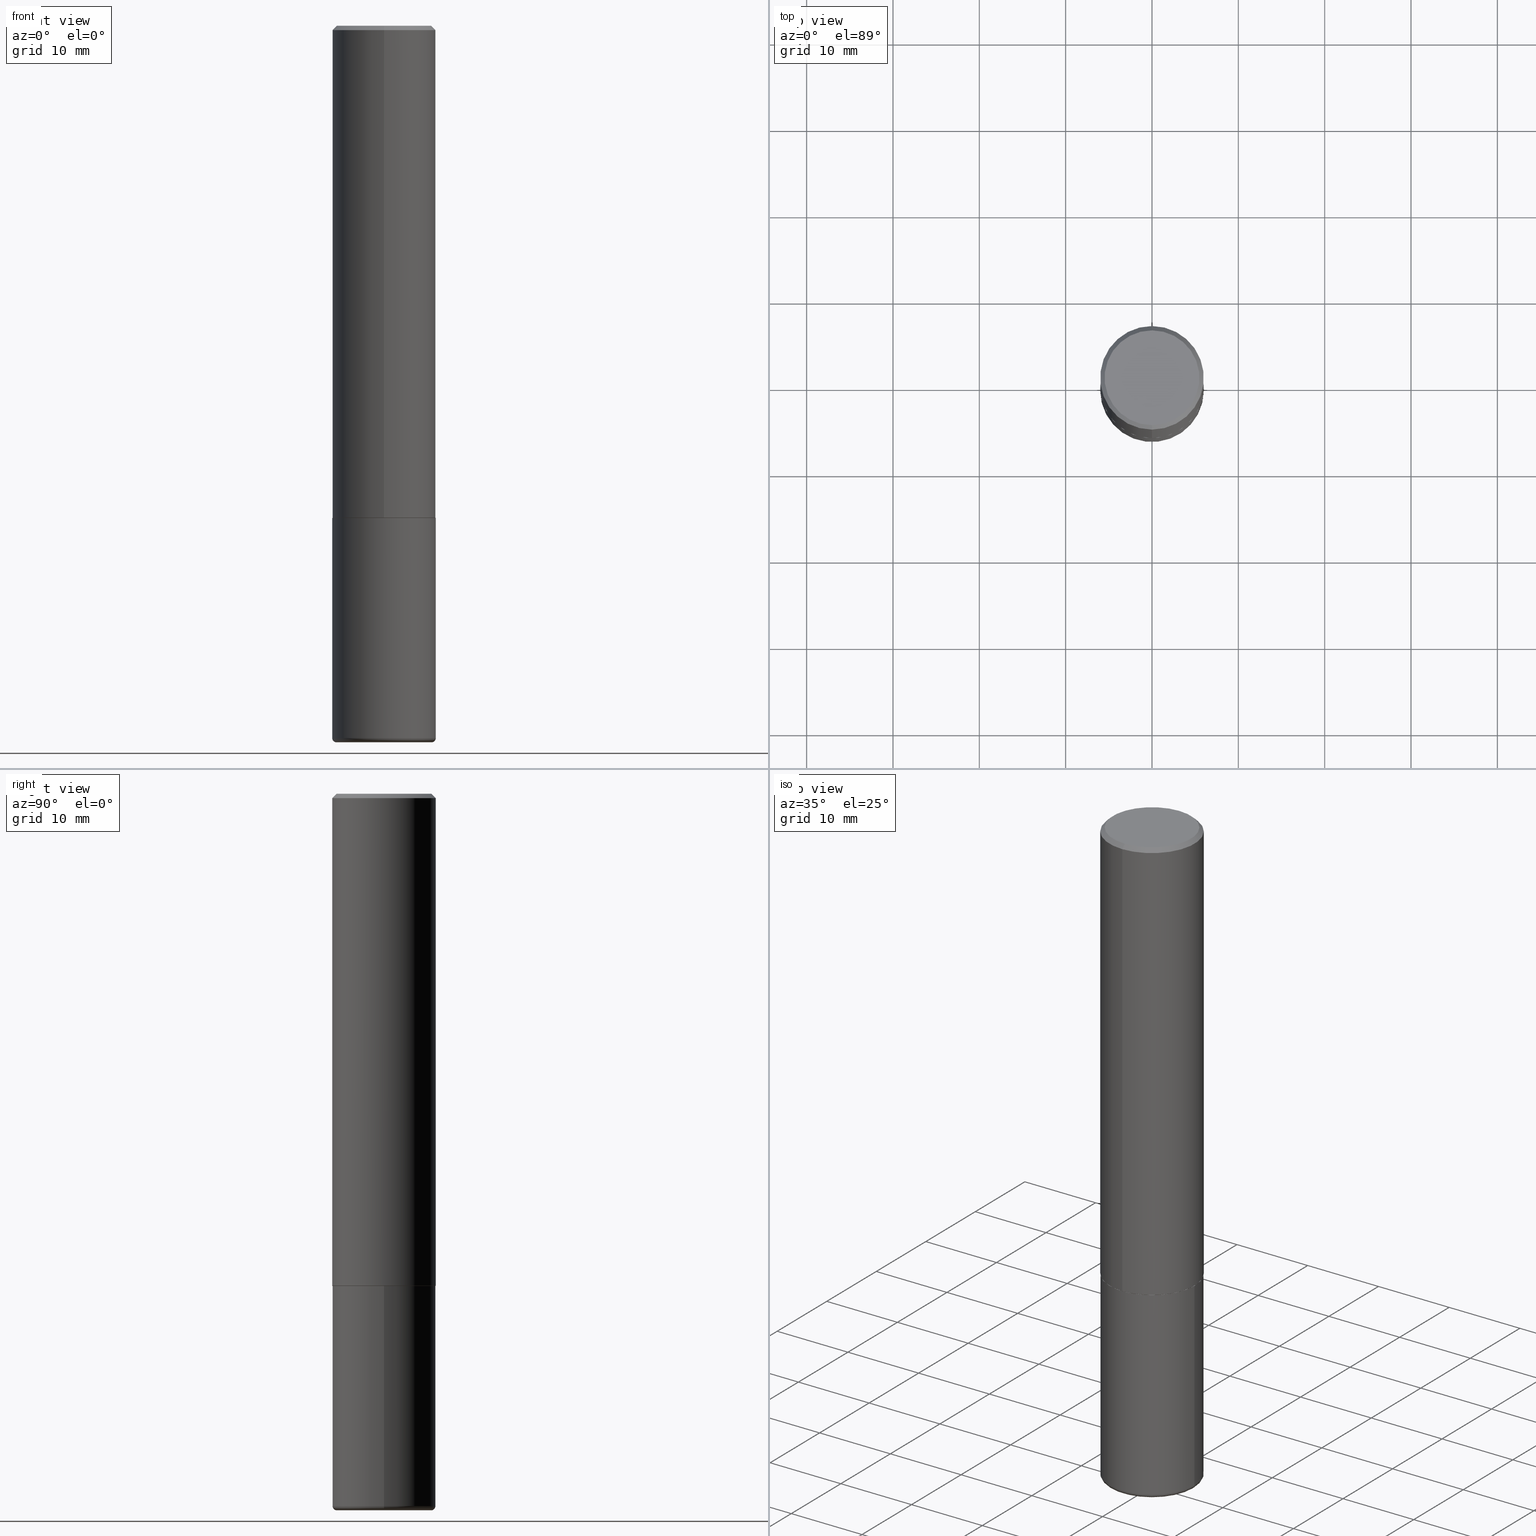
[diagram: canonical four-view strip — front | top / right | iso, engineering-drawing reading convention]
A machine part, canonical four-view strip (front | top / right | iso — engineering-drawing reading convention). The complete STEP part file that produces these views, byte-faithful:
ISO-10303-21;
HEADER;
FILE_DESCRIPTION (( 'STEP AP203' ),
    '1' );
FILE_NAME ('46460.STEP',
    '2024-03-04T21:44:37',
    ( '' ),
    ( '' ),
    'SwSTEP 2.0',
    'SolidWorks 2023',
    '' );
FILE_SCHEMA (( 'CONFIG_CONTROL_DESIGN' ));
ENDSEC;

DATA;
#1 =( CONVERSION_BASED_UNIT ( 'INCH', #356 ) LENGTH_UNIT ( ) NAMED_UNIT ( #71 ) );
#2 = AXIS2_PLACEMENT_3D ( 'NONE', #118, #46, #375 ) ;
#3 = COORDINATED_UNIVERSAL_TIME_OFFSET ( 5, 0, .BEHIND. ) ;
#4 = EDGE_CURVE ( 'NONE', #11, #188, #104, .T. ) ;
#5 = CARTESIAN_POINT ( 'NONE',  ( 4.892729358653232010E-31, -6.980396795029263509E-17, -0.02000000000000005246 ) ) ;
#6 = VERTEX_POINT ( 'NONE', #217 ) ;
#7 = PLANE ( 'NONE',  #122 ) ;
#8 = ORIENTED_EDGE ( 'NONE', *, *, #4, .F. ) ;
#9 = AXIS2_PLACEMENT_3D ( 'NONE', #345, #159, #384 ) ;
#10 = DIRECTION ( 'NONE',  ( 1.000000000000000000, -6.982962677686267499E-15, 0.000000000000000000 ) ) ;
#11 = VERTEX_POINT ( 'NONE', #335 ) ;
#12 = ORIENTED_EDGE ( 'NONE', *, *, #270, .T. ) ;
#13 = CARTESIAN_POINT ( 'NONE',  ( -1.620449627073635473E-15, -0.2362000000000001321, -0.01999999999999922673 ) ) ;
#14 = ORIENTED_EDGE ( 'NONE', *, *, #98, .F. ) ;
#15 = ORIENTED_EDGE ( 'NONE', *, *, #413, .T. ) ;
#16 = AXIS2_PLACEMENT_3D ( 'NONE', #117, #183, #158 ) ;
#17 = CARTESIAN_POINT ( 'NONE',  ( 4.892729358653232010E-31, -6.980396795029263509E-17, -0.02000000000000005246 ) ) ;
#18 = APPROVAL_PERSON_ORGANIZATION ( #137, #366, #70 ) ;
#19 = EDGE_CURVE ( 'NONE', #203, #141, #368, .T. ) ;
#20 = DIRECTION ( 'NONE',  ( -1.000000000000000000, 6.982962677686265922E-15, -4.876176775795935793E-29 ) ) ;
#21 = DIRECTION ( 'NONE',  ( -2.446364679326609751E-29, 3.490198397514623595E-15, 1.000000000000000000 ) ) ;
#22 = EDGE_CURVE ( 'NONE', #182, #11, #78, .T. ) ;
#23 = DIRECTION ( 'NONE',  ( -6.982962677686266711E-15, -1.000000000000000000, 3.491481338843145583E-15 ) ) ;
#24 = VECTOR ( 'NONE', #374, 39.37007874015748143 ) ;
#25 = LINE ( 'NONE', #378, #405 ) ;
#26 = VECTOR ( 'NONE', #155, 39.37007874015748143 ) ;
#27 = APPROVAL_PERSON_ORGANIZATION ( #127, #272, #200 ) ;
#28 = EDGE_CURVE ( 'NONE', #279, #410, #193, .T. ) ;
#29 = FACE_OUTER_BOUND ( 'NONE', #273, .T. ) ;
#30 = PRODUCT_DEFINITION_SHAPE ( 'NONE', 'NONE',  #358 ) ;
#31 = ADVANCED_FACE ( 'NONE', ( #178 ), #232, .T. ) ;
#32 = CIRCLE ( 'NONE', #9, 0.2164999999999999980 ) ;
#33 = COORDINATED_UNIVERSAL_TIME_OFFSET ( 5, 0, .BEHIND. ) ;
#34 = PERSON_AND_ORGANIZATION_ROLE ( 'classification_officer' ) ;
#35 = ORIENTED_EDGE ( 'NONE', *, *, #392, .F. ) ;
#36 = DIRECTION ( 'NONE',  ( 1.000000000000000000, 0.000000000000000000, 0.000000000000000000 ) ) ;
#37 = FACE_OUTER_BOUND ( 'NONE', #290, .T. ) ;
#38 = CC_DESIGN_PERSON_AND_ORGANIZATION_ASSIGNMENT ( #361, #34, ( #207 ) ) ;
#39 = CONICAL_SURFACE ( 'NONE', #121, 0.2362000000000000766, 0.7853981633974477239 ) ;
#40 = DIRECTION ( 'NONE',  ( -6.982962677686265133E-15, -1.000000000000000000, 3.484499991918703113E-15 ) ) ;
#41 = ORIENTED_EDGE ( 'NONE', *, *, #415, .T. ) ;
#42 = APPROVAL_STATUS ( 'not_yet_approved' ) ;
#43 = PLANE ( 'NONE',  #250 ) ;
#44 = EDGE_CURVE ( 'NONE', #369, #11, #355, .T. ) ;
#45 = DIRECTION ( 'NONE',  ( -2.446364679326609751E-29, 3.490198397514623595E-15, 1.000000000000000000 ) ) ;
#46 = DIRECTION ( 'NONE',  ( 7.105427357601001859E-15, 1.000000000000000000, -3.491481338843145583E-15 ) ) ;
#47 = ORIENTED_EDGE ( 'NONE', *, *, #402, .T. ) ;
#48 = CARTESIAN_POINT ( 'NONE',  ( 1.649375784469496920E-15, 0.2361999999999999933, -0.02000000000000087472 ) ) ;
#49 = ORIENTED_EDGE ( 'NONE', *, *, #156, .T. ) ;
#50 = DIRECTION ( 'NONE',  ( -2.445468806185136597E-29, 3.491481338843145583E-15, 1.000000000000000000 ) ) ;
#51 = MANIFOLD_SOLID_BREP ( 'Body-Move/Copy2[1]', #259 ) ;
#52 = VECTOR ( 'NONE', #363, 39.37007874015748143 ) ;
#53 = CARTESIAN_POINT ( 'NONE',  ( 7.942882682489324976E-29, -1.134033138856253841E-14, -3.248000000000000220 ) ) ;
#54 = EDGE_LOOP ( 'NONE', ( #146, #215, #301, #35 ) ) ;
#55 = FACE_OUTER_BOUND ( 'NONE', #115, .T. ) ;
#56 = ADVANCED_FACE ( 'NONE', ( #340 ), #43, .F. ) ;
#57 = CARTESIAN_POINT ( 'NONE',  ( -0.2361999999999999933, 1.678301941865356591E-15, -1.161852468318208757E-29 ) ) ;
#58 = DIRECTION ( 'NONE',  ( -2.445468806185136877E-29, 3.491481338843145188E-15, 1.000000000000000000 ) ) ;
#59 = CARTESIAN_POINT ( 'NONE',  ( 7.942882682489323855E-29, -1.134033138856253683E-14, -3.247999999999999776 ) ) ;
#60 = CIRCLE ( 'NONE', #286, 0.2351999999999999924 ) ;
#61 = LOCAL_TIME ( 16, 44, 37.00000000000000000, #327 ) ;
#62 = CC_DESIGN_DATE_AND_TIME_ASSIGNMENT ( #390, #230, ( #358 ) ) ;
#63 = APPLICATION_CONTEXT ( 'configuration controlled 3d designs of mechanical parts and assemblies' ) ;
#64 = AXIS2_PLACEMENT_3D ( 'NONE', #305, #83, #144 ) ;
#65 = AXIS2_PLACEMENT_3D ( 'NONE', #265, #129, #36 ) ;
#66 = PERSON_AND_ORGANIZATION_ROLE ( 'creator' ) ;
#67 = ADVANCED_FACE ( 'NONE', ( #221 ), #319, .T. ) ;
#68 = ORIENTED_EDGE ( 'NONE', *, *, #139, .F. ) ;
#69 =( NAMED_UNIT ( * ) PLANE_ANGLE_UNIT ( ) SI_UNIT ( $, .RADIAN. ) );
#70 = APPROVAL_ROLE ( '' ) ;
#71 = DIMENSIONAL_EXPONENTS ( 1.000000000000000000, 0.000000000000000000, 0.000000000000000000, 0.000000000000000000, 0.000000000000000000, 0.000000000000000000, 0.000000000000000000 ) ;
#72 = AXIS2_PLACEMENT_3D ( 'NONE', #59, #120, #86 ) ;
#73 = CALENDAR_DATE ( 2024, 4, 3 ) ;
#74 = CARTESIAN_POINT ( 'NONE',  ( 1.649375784469496920E-15, 0.2361999999999999933, -0.02000000000000087472 ) ) ;
#75 = EDGE_LOOP ( 'NONE', ( #180, #360, #236, #253 ) ) ;
#76 = CARTESIAN_POINT ( 'NONE',  ( 7.942882682489324976E-29, -1.134033138856253841E-14, -3.248000000000000220 ) ) ;
#77 = CARTESIAN_POINT ( 'NONE',  ( 1.671196514507810212E-15, 0.2351999999999921653, -2.244100000000000872 ) ) ;
#78 = LINE ( 'NONE', #77, #370 ) ;
#79 = CIRCLE ( 'NONE', #347, 0.2161999999999999755 ) ;
#80 = CARTESIAN_POINT ( 'NONE',  ( -1.559565199792445937E-45, 2.225012487767551474E-31, 6.375031543627968930E-17 ) ) ;
#81 = ORIENTED_EDGE ( 'NONE', *, *, #315, .T. ) ;
#82 = CARTESIAN_POINT ( 'NONE',  ( -0.2164999999999999980, -9.766408997357155292E-15, -3.267699999999999605 ) ) ;
#83 = DIRECTION ( 'NONE',  ( -2.446364679326609751E-29, 3.490198397514623595E-15, 1.000000000000000000 ) ) ;
#84 = DIRECTION ( 'NONE',  ( -2.446364679326609191E-29, 3.490198397514623595E-15, 1.000000000000000000 ) ) ;
#85 = AXIS2_PLACEMENT_3D ( 'NONE', #80, #45, #216 ) ;
#86 = DIRECTION ( 'NONE',  ( 1.000000000000000000, -6.982962677686265133E-15, 0.000000000000000000 ) ) ;
#87 = EDGE_CURVE ( 'NONE', #175, #147, #157, .T. ) ;
#88 = DIRECTION ( 'NONE',  ( -6.982962677686265133E-15, -1.000000000000000000, 3.484499991918703113E-15 ) ) ;
#89 = DESIGN_CONTEXT ( 'detailed design', #334, 'design' ) ;
#90 = EDGE_CURVE ( 'NONE', #147, #400, #226, .T. ) ;
#91 = DIRECTION ( 'NONE',  ( -6.982962677686265922E-15, -1.000000000000000000, 3.490198397514623989E-15 ) ) ;
#92 = CALENDAR_DATE ( 2024, 4, 3 ) ;
#93 = VECTOR ( 'NONE', #58, 39.37007874015748143 ) ;
#94 = PERSON_AND_ORGANIZATION_ROLE ( 'design_supplier' ) ;
#95 = ADVANCED_FACE ( 'NONE', ( #37 ), #179, .T. ) ;
#96 = CALENDAR_DATE ( 2024, 4, 3 ) ;
#97 = CIRCLE ( 'NONE', #386, 0.2351999999999999924 ) ;
#98 = EDGE_CURVE ( 'NONE', #6, #188, #205, .T. ) ;
#99 = DIRECTION ( 'NONE',  ( 1.000000000000000000, -6.982962677686269077E-15, 0.000000000000000000 ) ) ;
#100 = SHAPE_DEFINITION_REPRESENTATION ( #30, #330 ) ;
#101 = DIRECTION ( 'NONE',  ( 1.000000000000000000, -6.982962677686267499E-15, 4.883557194083112901E-29 ) ) ;
#102 = CYLINDRICAL_SURFACE ( 'NONE', #399, 0.2361999999999999933 ) ;
#103 = ADVANCED_FACE ( 'NONE', ( #238 ), #7, .F. ) ;
#104 = LINE ( 'NONE', #149, #24 ) ;
#105 = CIRCLE ( 'NONE', #214, 0.2361999999999999933 ) ;
#106 = CC_DESIGN_APPROVAL ( #366, ( #207 ) ) ;
#107 = DIRECTION ( 'NONE',  ( -2.445468806185136597E-29, 3.491481338843145583E-15, 1.000000000000000000 ) ) ;
#108 = ORIENTED_EDGE ( 'NONE', *, *, #44, .T. ) ;
#109 = ADVANCED_FACE ( 'NONE', ( #373 ), #337, .T. ) ;
#110 = CALENDAR_DATE ( 2024, 4, 3 ) ;
#111 = ORIENTED_EDGE ( 'NONE', *, *, #402, .F. ) ;
#112 = DIRECTION ( 'NONE',  ( 2.446364679326609191E-29, -3.490198397514623595E-15, -1.000000000000000000 ) ) ;
#113 = ORIENTED_EDGE ( 'NONE', *, *, #87, .F. ) ;
#114 = AXIS2_PLACEMENT_3D ( 'NONE', #187, #254, #20 ) ;
#115 = EDGE_LOOP ( 'NONE', ( #138, #341 ) ) ;
#116 = CC_DESIGN_PERSON_AND_ORGANIZATION_ASSIGNMENT ( #296, #66, ( #124 ) ) ;
#117 = CARTESIAN_POINT ( 'NONE',  ( 5.487440612197518325E-29, -7.828864025465052475E-15, -2.243100000000000094 ) ) ;
#118 = CARTESIAN_POINT ( 'NONE',  ( -0.2164999999999999980, -9.802006365641922115E-15, -3.248000000000000220 ) ) ;
#119 = DIRECTION ( 'NONE',  ( -2.445468806185136597E-29, 3.491481338843145583E-15, 1.000000000000000000 ) ) ;
#120 = DIRECTION ( 'NONE',  ( -2.445468806185136597E-29, 3.491481338843145583E-15, 1.000000000000000000 ) ) ;
#121 = AXIS2_PLACEMENT_3D ( 'NONE', #17, #411, #314 ) ;
#122 = AXIS2_PLACEMENT_3D ( 'NONE', #403, #112, #248 ) ;
#123 = DIRECTION ( 'NONE',  ( 1.000000000000000000, -6.982962677686267499E-15, 4.883557194083112901E-29 ) ) ;
#124 = PRODUCT_DEFINITION_FORMATION_WITH_SPECIFIED_SOURCE ( 'ANY', '', #357, .NOT_KNOWN. ) ;
#125 = EDGE_CURVE ( 'NONE', #175, #279, #229, .T. ) ;
#126 = CARTESIAN_POINT ( 'NONE',  ( 7.942882682489323855E-29, -1.134033138856253683E-14, -3.247999999999999776 ) ) ;
#127 = PERSON_AND_ORGANIZATION ( #326, #323 ) ;
#128 = CALENDAR_DATE ( 2024, 4, 3 ) ;
#129 = DIRECTION ( 'NONE',  ( 0.000000000000000000, 0.000000000000000000, 1.000000000000000000 ) ) ;
#130 = EDGE_CURVE ( 'NONE', #182, #311, #60, .T. ) ;
#131 = PERSON_AND_ORGANIZATION ( #326, #323 ) ;
#132 = VECTOR ( 'NONE', #309, 39.37007874015748143 ) ;
#133 = AXIS2_PLACEMENT_3D ( 'NONE', #228, #84, #294 ) ;
#134 = CC_DESIGN_APPROVAL ( #272, ( #358 ) ) ;
#135 = ORIENTED_EDGE ( 'NONE', *, *, #130, .T. ) ;
#136 = APPROVAL_DATE_TIME ( #210, #366 ) ;
#137 = PERSON_AND_ORGANIZATION ( #326, #323 ) ;
#138 = ORIENTED_EDGE ( 'NONE', *, *, #125, .F. ) ;
#139 = EDGE_CURVE ( 'NONE', #311, #182, #97, .T. ) ;
#140 = CARTESIAN_POINT ( 'NONE',  ( -0.2361999999999999933, -7.909480388664863981E-15, -2.244100000000000428 ) ) ;
#141 = VERTEX_POINT ( 'NONE', #13 ) ;
#142 = AXIS2_PLACEMENT_3D ( 'NONE', #5, #339, #306 ) ;
#143 = CARTESIAN_POINT ( 'NONE',  ( 0.000000000000000000, 0.000000000000000000, 0.000000000000000000 ) ) ;
#144 = DIRECTION ( 'NONE',  ( -6.982962677686265133E-15, -1.000000000000000000, 3.484499991918703113E-15 ) ) ;
#145 = ORIENTED_EDGE ( 'NONE', *, *, #28, .F. ) ;
#146 = ORIENTED_EDGE ( 'NONE', *, *, #139, .T. ) ;
#147 = VERTEX_POINT ( 'NONE', #213 ) ;
#148 = DIRECTION ( 'NONE',  ( -2.445468806185136597E-29, 3.491481338843145583E-15, 1.000000000000000000 ) ) ;
#149 = CARTESIAN_POINT ( 'NONE',  ( 1.678301941865357577E-15, 0.2362000000000001598, -8.243848614929546726E-16 ) ) ;
#150 = CIRCLE ( 'NONE', #72, 0.2361999999999999933 ) ;
#151 = CARTESIAN_POINT ( 'NONE',  ( 5.489886976876845034E-29, -7.832354223862566296E-15, -2.244100000000000428 ) ) ;
#152 = CARTESIAN_POINT ( 'NONE',  ( 5.487876547960065873E-29, -7.835233272497903917E-15, -2.244100000000000428 ) ) ;
#153 = CARTESIAN_POINT ( 'NONE',  ( -1.649375784469443080E-15, -0.2362000000000080979, -2.243099999999999206 ) ) ;
#154 = ORIENTED_EDGE ( 'NONE', *, *, #125, .T. ) ;
#155 = DIRECTION ( 'NONE',  ( -2.445468806185136877E-29, 3.491481338843145188E-15, 1.000000000000000000 ) ) ;
#156 = EDGE_CURVE ( 'NONE', #141, #188, #391, .T. ) ;
#157 = CIRCLE ( 'NONE', #274, 0.01969999999999962059 ) ;
#158 = DIRECTION ( 'NONE',  ( -6.982962677686265922E-15, -1.000000000000000000, 3.469747663417773058E-15 ) ) ;
#159 = DIRECTION ( 'NONE',  ( -2.445468806185136597E-29, 3.491481338843145583E-15, 1.000000000000000000 ) ) ;
#160 = DIRECTION ( 'NONE',  ( -1.000000000000000000, 6.982962677686265922E-15, -4.876176775795935793E-29 ) ) ;
#161 = ADVANCED_FACE ( 'NONE', ( #367 ), #102, .T. ) ;
#162 = APPLICATION_PROTOCOL_DEFINITION ( 'international standard', 'config_control_design', 1994, #334 ) ;
#163 =( NAMED_UNIT ( * ) SI_UNIT ( $, .STERADIAN. ) SOLID_ANGLE_UNIT ( ) );
#164 = AXIS2_PLACEMENT_3D ( 'NONE', #242, #246, #365 ) ;
#165 = APPROVAL_STATUS ( 'not_yet_approved' ) ;
#166 = EDGE_CURVE ( 'NONE', #6, #203, #297, .T. ) ;
#167 = EDGE_LOOP ( 'NONE', ( #219, #12 ) ) ;
#168 = AXIS2_PLACEMENT_3D ( 'NONE', #408, #119, #192 ) ;
#169 = AXIS2_PLACEMENT_3D ( 'NONE', #416, #417, #99 ) ;
#170 = EDGE_LOOP ( 'NONE', ( #68, #401 ) ) ;
#171 = CARTESIAN_POINT ( 'NONE',  ( 5.489886976876845034E-29, -7.832354223862566296E-15, -2.244100000000000428 ) ) ;
#172 = CARTESIAN_POINT ( 'NONE',  ( -1.620449627073635473E-15, -0.2362000000000001321, -0.01999999999999922673 ) ) ;
#173 = CC_DESIGN_PERSON_AND_ORGANIZATION_ASSIGNMENT ( #389, #199, ( #357 ) ) ;
#174 = DIRECTION ( 'NONE',  ( -2.446364679326609751E-29, 3.490198397514623595E-15, 1.000000000000000000 ) ) ;
#175 = VERTEX_POINT ( 'NONE', #342 ) ;
#176 = CARTESIAN_POINT ( 'NONE',  ( 0.000000000000000000, 0.000000000000000000, 0.000000000000000000 ) ) ;
#177 = TOROIDAL_SURFACE ( 'NONE', #379, 0.2164999999999999980, 0.01969999999999962059 ) ;
#178 = FACE_OUTER_BOUND ( 'NONE', #281, .T. ) ;
#179 = CYLINDRICAL_SURFACE ( 'NONE', #240, 0.2362000000000001598 ) ;
#180 = ORIENTED_EDGE ( 'NONE', *, *, #260, .T. ) ;
#181 = FACE_OUTER_BOUND ( 'NONE', #329, .T. ) ;
#182 = VERTEX_POINT ( 'NONE', #364 ) ;
#183 = DIRECTION ( 'NONE',  ( -2.446364679326609751E-29, 3.490198397514623595E-15, 1.000000000000000000 ) ) ;
#184 = AXIS2_PLACEMENT_3D ( 'NONE', #354, #258, #380 ) ;
#185 = CC_DESIGN_SECURITY_CLASSIFICATION ( #207, ( #124 ) ) ;
#186 = ORIENTED_EDGE ( 'NONE', *, *, #392, .T. ) ;
#187 = CARTESIAN_POINT ( 'NONE',  ( 1.374957371002732032E-28, -3.162591918377267000E-15, -3.267699999999999605 ) ) ;
#188 = VERTEX_POINT ( 'NONE', #48 ) ;
#189 = PRODUCT_RELATED_PRODUCT_CATEGORY ( 'detail', '', ( #357 ) ) ;
#190 = LINE ( 'NONE', #414, #331 ) ;
#191 = MANIFOLD_SOLID_BREP ( 'Body-Move/Copy2[2]', #249 ) ;
#192 = DIRECTION ( 'NONE',  ( 1.000000000000000000, -6.982962677686266711E-15, 4.876176775795936353E-29 ) ) ;
#193 = CIRCLE ( 'NONE', #2, 0.01969999999999962059 ) ;
#194 = AXIS2_PLACEMENT_3D ( 'NONE', #151, #312, #88 ) ;
#195 = CARTESIAN_POINT ( 'NONE',  ( 4.892729358653232010E-31, -6.980396795029263509E-17, -0.02000000000000005246 ) ) ;
#196 = DIRECTION ( 'NONE',  ( 1.000000000000000000, -6.982962677686265133E-15, 0.000000000000000000 ) ) ;
#197 = APPROVAL ( #165, 'UNSPECIFIED' ) ;
#198 = COORDINATED_UNIVERSAL_TIME_OFFSET ( 5, 0, .BEHIND. ) ;
#199 = PERSON_AND_ORGANIZATION_ROLE ( 'design_owner' ) ;
#200 = APPROVAL_ROLE ( '' ) ;
#201 = AXIS2_PLACEMENT_3D ( 'NONE', #126, #376, #351 ) ;
#202 = LOCAL_TIME ( 16, 44, 37.00000000000000000, #275 ) ;
#203 = VERTEX_POINT ( 'NONE', #211 ) ;
#204 = ORIENTED_EDGE ( 'NONE', *, *, #237, .F. ) ;
#205 = LINE ( 'NONE', #74, #52 ) ;
#206 = TOROIDAL_SURFACE ( 'NONE', #222, 0.2164999999999999980, 0.01969999999999962059 ) ;
#207 = SECURITY_CLASSIFICATION ( '', '', #231 ) ;
#208 = EDGE_LOOP ( 'NONE', ( #108, #284, #418, #285 ) ) ;
#209 = ADVANCED_FACE ( 'NONE', ( #181 ), #177, .T. ) ;
#210 = DATE_AND_TIME ( #73, #268 ) ;
#211 = CARTESIAN_POINT ( 'NONE',  ( -1.551844647095920339E-15, -0.2161999999999999755, 8.183312089789412461E-16 ) ) ;
#212 = EDGE_LOOP ( 'NONE', ( #307, #47, #394, #204 ) ) ;
#213 = CARTESIAN_POINT ( 'NONE',  ( 0.2361999999999997990, -1.298970717303203178E-14, -3.247999999999999776 ) ) ;
#214 = AXIS2_PLACEMENT_3D ( 'NONE', #218, #50, #225 ) ;
#215 = ORIENTED_EDGE ( 'NONE', *, *, #22, .T. ) ;
#216 = DIRECTION ( 'NONE',  ( -6.982962677686265922E-15, -1.000000000000000000, 3.490198397514623989E-15 ) ) ;
#217 = CARTESIAN_POINT ( 'NONE',  ( 1.579546157692633819E-15, 0.2161999999999999755, -6.908305781063820154E-16 ) ) ;
#218 = CARTESIAN_POINT ( 'NONE',  ( 5.487876547960065873E-29, -7.835233272497903917E-15, -2.244100000000000428 ) ) ;
#219 = ORIENTED_EDGE ( 'NONE', *, *, #166, .T. ) ;
#220 = FACE_OUTER_BOUND ( 'NONE', #54, .T. ) ;
#221 = FACE_OUTER_BOUND ( 'NONE', #344, .T. ) ;
#222 = AXIS2_PLACEMENT_3D ( 'NONE', #53, #262, #123 ) ;
#223 =( GEOMETRIC_REPRESENTATION_CONTEXT ( 3 ) GLOBAL_UNCERTAINTY_ASSIGNED_CONTEXT ( ( #266 ) ) GLOBAL_UNIT_ASSIGNED_CONTEXT ( ( #1, #69, #163 ) ) REPRESENTATION_CONTEXT ( 'NONE', 'WORKASPACE' ) );
#224 = CARTESIAN_POINT ( 'NONE',  ( 0.2164999999999999980, -1.285214280828161572E-14, -3.248000000000000220 ) ) ;
#225 = DIRECTION ( 'NONE',  ( 1.000000000000000000, -6.982962677686269077E-15, 0.000000000000000000 ) ) ;
#226 = LINE ( 'NONE', #352, #93 ) ;
#227 = VERTEX_POINT ( 'NONE', #140 ) ;
#228 = CARTESIAN_POINT ( 'NONE',  ( 5.489886976876845034E-29, -7.832354223862566296E-15, -2.244100000000000428 ) ) ;
#229 = CIRCLE ( 'NONE', #313, 0.2164999999999999980 ) ;
#230 = DATE_TIME_ROLE ( 'creation_date' ) ;
#231 = SECURITY_CLASSIFICATION_LEVEL ( 'unclassified' ) ;
#232 = CONICAL_SURFACE ( 'NONE', #64, 0.2351999999999999924, 0.7853981633975507526 ) ;
#233 = APPROVAL_STATUS ( 'not_yet_approved' ) ;
#234 = ORIENTED_EDGE ( 'NONE', *, *, #270, .F. ) ;
#235 = PERSON_AND_ORGANIZATION_ROLE ( 'creator' ) ;
#236 = ORIENTED_EDGE ( 'NONE', *, *, #415, .F. ) ;
#237 = EDGE_CURVE ( 'NONE', #227, #400, #105, .T. ) ;
#238 = FACE_OUTER_BOUND ( 'NONE', #167, .T. ) ;
#239 = DIRECTION ( 'NONE',  ( 1.000000000000000000, -6.982962677686266711E-15, 4.876176775795936353E-29 ) ) ;
#240 = AXIS2_PLACEMENT_3D ( 'NONE', #304, #282, #280 ) ;
#241 = CIRCLE ( 'NONE', #169, 0.2361999999999999933 ) ;
#242 = CARTESIAN_POINT ( 'NONE',  ( 5.487440612197518325E-29, -7.828864025465052475E-15, -2.243100000000000094 ) ) ;
#243 = ORIENTED_EDGE ( 'NONE', *, *, #28, .T. ) ;
#244 = ADVANCED_FACE ( 'NONE', ( #29 ), #206, .T. ) ;
#245 = CARTESIAN_POINT ( 'NONE',  ( 7.991058417971169471E-29, -1.140911357093774486E-14, -3.267699999999999605 ) ) ;
#246 = DIRECTION ( 'NONE',  ( -2.446364679326609751E-29, 3.490198397514623595E-15, 1.000000000000000000 ) ) ;
#247 = DATE_AND_TIME ( #110, #202 ) ;
#248 = DIRECTION ( 'NONE',  ( 6.982962677686265922E-15, 1.000000000000000000, -3.490198397514623595E-15 ) ) ;
#249 = CLOSED_SHELL ( 'NONE', ( #318, #109, #67, #325, #95, #31, #310, #103 ) ) ;
#250 = AXIS2_PLACEMENT_3D ( 'NONE', #152, #255, #160 ) ;
#251 = ORIENTED_EDGE ( 'NONE', *, *, #237, .T. ) ;
#252 = CARTESIAN_POINT ( 'NONE',  ( -1.559565199792445937E-45, 2.225012487767551474E-31, 6.375031543627968930E-17 ) ) ;
#253 = ORIENTED_EDGE ( 'NONE', *, *, #90, .F. ) ;
#254 = DIRECTION ( 'NONE',  ( 2.438088387897960049E-29, -3.491481338843145188E-15, -1.000000000000000000 ) ) ;
#255 = DIRECTION ( 'NONE',  ( 2.438088387897960049E-29, -3.491481338843145188E-15, -1.000000000000000000 ) ) ;
#256 = EDGE_LOOP ( 'NONE', ( #383, #362, #283, #15 ) ) ;
#257 = LINE ( 'NONE', #57, #26 ) ;
#258 = DIRECTION ( 'NONE',  ( 2.446364679326609751E-29, -3.490198397514623595E-15, -1.000000000000000000 ) ) ;
#259 = CLOSED_SHELL ( 'NONE', ( #161, #244, #56, #328, #209, #343 ) ) ;
#260 = EDGE_CURVE ( 'NONE', #147, #410, #303, .T. ) ;
#261 = LOCAL_TIME ( 16, 44, 37.00000000000000000, #33 ) ;
#262 = DIRECTION ( 'NONE',  ( -2.445468806185136597E-29, 3.491481338843145583E-15, 1.000000000000000000 ) ) ;
#263 = ORIENTED_EDGE ( 'NONE', *, *, #315, .F. ) ;
#264 = CARTESIAN_POINT ( 'NONE',  ( -1.642392821791754699E-15, -0.2352000000000078195, -2.244099999999999540 ) ) ;
#265 = CARTESIAN_POINT ( 'NONE',  ( 0.000000000000000000, 0.000000000000000000, 0.000000000000000000 ) ) ;
#266 = UNCERTAINTY_MEASURE_WITH_UNIT (LENGTH_MEASURE( 1.000000000000000082E-05 ), #1, 'distance_accuracy_value', 'NONE');
#267 = CIRCLE ( 'NONE', #16, 0.2362000000000002709 ) ;
#268 = LOCAL_TIME ( 16, 44, 37.00000000000000000, #3 ) ;
#269 = MECHANICAL_CONTEXT ( 'NONE', #63, 'mechanical' ) ;
#270 = EDGE_CURVE ( 'NONE', #203, #6, #79, .T. ) ;
#271 = PERSON_AND_ORGANIZATION ( #326, #323 ) ;
#272 = APPROVAL ( #233, 'UNSPECIFIED' ) ;
#273 = EDGE_LOOP ( 'NONE', ( #154, #243, #349, #113 ) ) ;
#274 = AXIS2_PLACEMENT_3D ( 'NONE', #224, #23, #196 ) ;
#275 = COORDINATED_UNIVERSAL_TIME_OFFSET ( 5, 0, .BEHIND. ) ;
#276 = CIRCLE ( 'NONE', #381, 0.2362000000000000766 ) ;
#277 = CC_DESIGN_PERSON_AND_ORGANIZATION_ASSIGNMENT ( #324, #235, ( #358 ) ) ;
#278 = DIRECTION ( 'NONE',  ( -6.982962677686265922E-15, -1.000000000000000000, 3.490198397514623595E-15 ) ) ;
#279 = VERTEX_POINT ( 'NONE', #82 ) ;
#280 = DIRECTION ( 'NONE',  ( -6.982962677686265922E-15, -1.000000000000000000, 3.490198397514623595E-15 ) ) ;
#281 = EDGE_LOOP ( 'NONE', ( #338, #135, #186, #263 ) ) ;
#282 = DIRECTION ( 'NONE',  ( -2.446364679326609751E-29, 3.490198397514623595E-15, 1.000000000000000000 ) ) ;
#283 = ORIENTED_EDGE ( 'NONE', *, *, #98, .T. ) ;
#284 = ORIENTED_EDGE ( 'NONE', *, *, #4, .T. ) ;
#285 = ORIENTED_EDGE ( 'NONE', *, *, #371, .F. ) ;
#286 = AXIS2_PLACEMENT_3D ( 'NONE', #333, #332, #40 ) ;
#287 = ORIENTED_EDGE ( 'NONE', *, *, #87, .T. ) ;
#288 = CYLINDRICAL_SURFACE ( 'NONE', #168, 0.2361999999999999933 ) ;
#289 = DIRECTION ( 'NONE',  ( -2.446364679326609751E-29, 3.490198397514623595E-15, 1.000000000000000000 ) ) ;
#290 = EDGE_LOOP ( 'NONE', ( #8, #81, #407, #404 ) ) ;
#291 = DIRECTION ( 'NONE',  ( -6.982962677686265922E-15, -1.000000000000000000, 3.487819265831410167E-15 ) ) ;
#292 = EDGE_CURVE ( 'NONE', #279, #175, #32, .T. ) ;
#293 = CC_DESIGN_APPROVAL ( #197, ( #124 ) ) ;
#294 = DIRECTION ( 'NONE',  ( -6.982962677686265922E-15, -1.000000000000000000, 3.490198397514623595E-15 ) ) ;
#295 = APPROVAL_DATE_TIME ( #322, #272 ) ;
#296 = PERSON_AND_ORGANIZATION ( #326, #323 ) ;
#297 = CIRCLE ( 'NONE', #85, 0.2161999999999999755 ) ;
#298 =( LENGTH_UNIT ( ) NAMED_UNIT ( * ) SI_UNIT ( $, .METRE. ) );
#299 = EDGE_CURVE ( 'NONE', #410, #227, #257, .T. ) ;
#300 = DIRECTION ( 'NONE',  ( -6.982962677686265133E-15, -1.000000000000000000, 3.484499991918703113E-15 ) ) ;
#301 = ORIENTED_EDGE ( 'NONE', *, *, #44, .F. ) ;
#302 = DIRECTION ( 'NONE',  ( 5.024295867788576727E-15, 0.7071067811866224018, 0.7071067811864726327 ) ) ;
#303 = CIRCLE ( 'NONE', #201, 0.2361999999999999933 ) ;
#304 = CARTESIAN_POINT ( 'NONE',  ( 0.000000000000000000, 0.000000000000000000, 0.000000000000000000 ) ) ;
#305 = CARTESIAN_POINT ( 'NONE',  ( 5.489886976876845034E-29, -7.832354223862566296E-15, -2.244100000000000428 ) ) ;
#306 = DIRECTION ( 'NONE',  ( -6.982962677686265922E-15, -1.000000000000000000, 3.487819265831410167E-15 ) ) ;
#307 = ORIENTED_EDGE ( 'NONE', *, *, #299, .F. ) ;
#308 = DIRECTION ( 'NONE',  ( -2.446364679326609751E-29, 3.490198397514623595E-15, 1.000000000000000000 ) ) ;
#309 = DIRECTION ( 'NONE',  ( -4.851104656540961119E-15, -0.7071067811865495711, -0.7071067811865454633 ) ) ;
#310 = ADVANCED_FACE ( 'NONE', ( #350 ), #406, .F. ) ;
#311 = VERTEX_POINT ( 'NONE', #264 ) ;
#312 = DIRECTION ( 'NONE',  ( -2.446364679326609751E-29, 3.490198397514623595E-15, 1.000000000000000000 ) ) ;
#313 = AXIS2_PLACEMENT_3D ( 'NONE', #245, #397, #10 ) ;
#314 = DIRECTION ( 'NONE',  ( 6.982962677686265922E-15, 1.000000000000000000, -3.487819265831410167E-15 ) ) ;
#315 = EDGE_CURVE ( 'NONE', #11, #369, #267, .T. ) ;
#316 = CARTESIAN_POINT ( 'NONE',  ( -0.2361999999999997990, -9.662029446697182017E-15, -3.247999999999999776 ) ) ;
#317 = PLANE ( 'NONE',  #114 ) ;
#318 = ADVANCED_FACE ( 'NONE', ( #220 ), #412, .T. ) ;
#319 = CONICAL_SURFACE ( 'NONE', #184, 0.2362000000000000766, 0.7853981633974477239 ) ;
#320 = DIRECTION ( 'NONE',  ( -4.937700262165053702E-15, -0.7071067811866175168, 0.7071067811864775177 ) ) ;
#321 = DATE_AND_TIME ( #96, #387 ) ;
#322 = DATE_AND_TIME ( #128, #261 ) ;
#323 = ORGANIZATION ( 'UNSPECIFIED', 'UNSPECIFIED', '' ) ;
#324 = PERSON_AND_ORGANIZATION ( #326, #323 ) ;
#325 = ADVANCED_FACE ( 'NONE', ( #353 ), #39, .T. ) ;
#326 = PERSON ( 'UNSPECIFIED', 'UNSPECIFIED', 'UNSPECIFIED', ('UNSPECIFIED'), ('UNSPECIFIED'), ('UNSPECIFIED') ) ;
#327 = COORDINATED_UNIVERSAL_TIME_OFFSET ( 5, 0, .BEHIND. ) ;
#328 = ADVANCED_FACE ( 'NONE', ( #346 ), #288, .T. ) ;
#329 = EDGE_LOOP ( 'NONE', ( #145, #396, #287, #111 ) ) ;
#330 = ADVANCED_BREP_SHAPE_REPRESENTATION ( '46460', ( #51, #191, #65 ), #223 ) ;
#331 = VECTOR ( 'NONE', #320, 39.37007874015748143 ) ;
#332 = DIRECTION ( 'NONE',  ( -2.446364679326609751E-29, 3.490198397514623595E-15, 1.000000000000000000 ) ) ;
#333 = CARTESIAN_POINT ( 'NONE',  ( 5.489886976876845034E-29, -7.832354223862566296E-15, -2.244100000000000428 ) ) ;
#334 = APPLICATION_CONTEXT ( 'configuration controlled 3d designs of mechanical parts and assemblies' ) ;
#335 = CARTESIAN_POINT ( 'NONE',  ( 1.678301941865385779E-15, 0.2361999999999924715, -2.243100000000000982 ) ) ;
#336 = CC_DESIGN_PERSON_AND_ORGANIZATION_ASSIGNMENT ( #271, #94, ( #124 ) ) ;
#337 = CYLINDRICAL_SURFACE ( 'NONE', #372, 0.2362000000000001598 ) ;
#338 = ORIENTED_EDGE ( 'NONE', *, *, #22, .F. ) ;
#339 = DIRECTION ( 'NONE',  ( -2.446364679326609751E-29, 3.490198397514623595E-15, 1.000000000000000000 ) ) ;
#340 = FACE_OUTER_BOUND ( 'NONE', #377, .T. ) ;
#341 = ORIENTED_EDGE ( 'NONE', *, *, #292, .F. ) ;
#342 = CARTESIAN_POINT ( 'NONE',  ( 0.2164999999999999980, -1.292092499065682217E-14, -3.267699999999999605 ) ) ;
#343 = ADVANCED_FACE ( 'NONE', ( #55 ), #317, .T. ) ;
#344 = EDGE_LOOP ( 'NONE', ( #234, #398, #49, #14 ) ) ;
#345 = CARTESIAN_POINT ( 'NONE',  ( 7.991058417971169471E-29, -1.140911357093774486E-14, -3.267699999999999605 ) ) ;
#346 = FACE_OUTER_BOUND ( 'NONE', #212, .T. ) ;
#347 = AXIS2_PLACEMENT_3D ( 'NONE', #252, #382, #91 ) ;
#348 = APPROVAL_PERSON_ORGANIZATION ( #131, #197, #388 ) ;
#349 = ORIENTED_EDGE ( 'NONE', *, *, #260, .F. ) ;
#350 = FACE_OUTER_BOUND ( 'NONE', #170, .T. ) ;
#351 = DIRECTION ( 'NONE',  ( 1.000000000000000000, -6.982962677686265133E-15, 0.000000000000000000 ) ) ;
#352 = CARTESIAN_POINT ( 'NONE',  ( 0.2361999999999999933, -1.649375784469496131E-15, 1.151752954443000088E-29 ) ) ;
#353 = FACE_OUTER_BOUND ( 'NONE', #256, .T. ) ;
#354 = CARTESIAN_POINT ( 'NONE',  ( 4.892729358653232010E-31, -6.980396795029263509E-17, -0.02000000000000005246 ) ) ;
#355 = CIRCLE ( 'NONE', #164, 0.2362000000000002709 ) ;
#356 = LENGTH_MEASURE_WITH_UNIT ( LENGTH_MEASURE( 0.02539999999999999897 ), #298 );
#357 = PRODUCT ( '46460', '46460', '', ( #269 ) ) ;
#358 = PRODUCT_DEFINITION ( 'UNKNOWN', '', #124, #89 ) ;
#359 = APPLICATION_PROTOCOL_DEFINITION ( 'international standard', 'config_control_design', 1994, #63 ) ;
#360 = ORIENTED_EDGE ( 'NONE', *, *, #299, .T. ) ;
#361 = PERSON_AND_ORGANIZATION ( #326, #323 ) ;
#362 = ORIENTED_EDGE ( 'NONE', *, *, #166, .F. ) ;
#363 = DIRECTION ( 'NONE',  ( 4.937700262164544887E-15, 0.7071067811865446862, -0.7071067811865503483 ) ) ;
#364 = CARTESIAN_POINT ( 'NONE',  ( 1.674749228186611702E-15, 0.2351999999999921653, -2.244100000000000872 ) ) ;
#365 = DIRECTION ( 'NONE',  ( -6.982962677686265922E-15, -1.000000000000000000, 3.469747663417773058E-15 ) ) ;
#366 = APPROVAL ( #42, 'UNSPECIFIED' ) ;
#367 = FACE_OUTER_BOUND ( 'NONE', #75, .T. ) ;
#368 = LINE ( 'NONE', #172, #132 ) ;
#369 = VERTEX_POINT ( 'NONE', #153 ) ;
#370 = VECTOR ( 'NONE', #302, 39.37007874015748143 ) ;
#371 = EDGE_CURVE ( 'NONE', #369, #141, #25, .T. ) ;
#372 = AXIS2_PLACEMENT_3D ( 'NONE', #176, #308, #278 ) ;
#373 = FACE_OUTER_BOUND ( 'NONE', #208, .T. ) ;
#374 = DIRECTION ( 'NONE',  ( -2.446364679326609751E-29, 3.490198397514623595E-15, 1.000000000000000000 ) ) ;
#375 = DIRECTION ( 'NONE',  ( -1.000000000000000000, 7.105427357600965571E-15, 0.000000000000000000 ) ) ;
#376 = DIRECTION ( 'NONE',  ( -2.445468806185136597E-29, 3.491481338843145583E-15, 1.000000000000000000 ) ) ;
#377 = EDGE_LOOP ( 'NONE', ( #41, #251 ) ) ;
#378 = CARTESIAN_POINT ( 'NONE',  ( -1.649375784469497117E-15, -0.2362000000000001598, 8.243848614929546726E-16 ) ) ;
#379 = AXIS2_PLACEMENT_3D ( 'NONE', #76, #148, #101 ) ;
#380 = DIRECTION ( 'NONE',  ( 6.982962677686265922E-15, 1.000000000000000000, -3.487819265831410167E-15 ) ) ;
#381 = AXIS2_PLACEMENT_3D ( 'NONE', #195, #21, #291 ) ;
#382 = DIRECTION ( 'NONE',  ( -2.446364679326609751E-29, 3.490198397514623595E-15, 1.000000000000000000 ) ) ;
#383 = ORIENTED_EDGE ( 'NONE', *, *, #19, .F. ) ;
#384 = DIRECTION ( 'NONE',  ( 1.000000000000000000, -6.982962677686267499E-15, 0.000000000000000000 ) ) ;
#385 = CC_DESIGN_DATE_AND_TIME_ASSIGNMENT ( #247, #395, ( #207 ) ) ;
#386 = AXIS2_PLACEMENT_3D ( 'NONE', #171, #174, #300 ) ;
#387 = LOCAL_TIME ( 16, 44, 37.00000000000000000, #198 ) ;
#388 = APPROVAL_ROLE ( '' ) ;
#389 = PERSON_AND_ORGANIZATION ( #326, #323 ) ;
#390 = DATE_AND_TIME ( #92, #61 ) ;
#391 = CIRCLE ( 'NONE', #142, 0.2362000000000000766 ) ;
#392 = EDGE_CURVE ( 'NONE', #311, #369, #190, .T. ) ;
#393 = APPROVAL_DATE_TIME ( #321, #197 ) ;
#394 = ORIENTED_EDGE ( 'NONE', *, *, #90, .T. ) ;
#395 = DATE_TIME_ROLE ( 'classification_date' ) ;
#396 = ORIENTED_EDGE ( 'NONE', *, *, #292, .T. ) ;
#397 = DIRECTION ( 'NONE',  ( -2.445468806185136597E-29, 3.491481338843145583E-15, 1.000000000000000000 ) ) ;
#398 = ORIENTED_EDGE ( 'NONE', *, *, #19, .T. ) ;
#399 = AXIS2_PLACEMENT_3D ( 'NONE', #143, #107, #239 ) ;
#400 = VERTEX_POINT ( 'NONE', #409 ) ;
#401 = ORIENTED_EDGE ( 'NONE', *, *, #130, .F. ) ;
#402 = EDGE_CURVE ( 'NONE', #410, #147, #150, .T. ) ;
#403 = CARTESIAN_POINT ( 'NONE',  ( 1.509716530915770520E-15, 0.2161999999999999755, -7.227057358245215026E-16 ) ) ;
#404 = ORIENTED_EDGE ( 'NONE', *, *, #413, .F. ) ;
#405 = VECTOR ( 'NONE', #289, 39.37007874015748143 ) ;
#406 = PLANE ( 'NONE',  #133 ) ;
#407 = ORIENTED_EDGE ( 'NONE', *, *, #371, .T. ) ;
#408 = CARTESIAN_POINT ( 'NONE',  ( 0.000000000000000000, 0.000000000000000000, 0.000000000000000000 ) ) ;
#409 = CARTESIAN_POINT ( 'NONE',  ( 0.2361999999999999933, -9.484609056967400443E-15, -2.244100000000000428 ) ) ;
#410 = VERTEX_POINT ( 'NONE', #316 ) ;
#411 = DIRECTION ( 'NONE',  ( 2.446364679326609751E-29, -3.490198397514623595E-15, -1.000000000000000000 ) ) ;
#412 = CONICAL_SURFACE ( 'NONE', #194, 0.2351999999999999924, 0.7853981633975507526 ) ;
#413 = EDGE_CURVE ( 'NONE', #188, #141, #276, .T. ) ;
#414 = CARTESIAN_POINT ( 'NONE',  ( -1.642392821791754699E-15, -0.2352000000000078195, -2.244099999999999540 ) ) ;
#415 = EDGE_CURVE ( 'NONE', #400, #227, #241, .T. ) ;
#416 = CARTESIAN_POINT ( 'NONE',  ( 5.487876547960065873E-29, -7.835233272497903917E-15, -2.244100000000000428 ) ) ;
#417 = DIRECTION ( 'NONE',  ( -2.445468806185136597E-29, 3.491481338843145583E-15, 1.000000000000000000 ) ) ;
#418 = ORIENTED_EDGE ( 'NONE', *, *, #156, .F. ) ;
ENDSEC;
END-ISO-10303-21;
